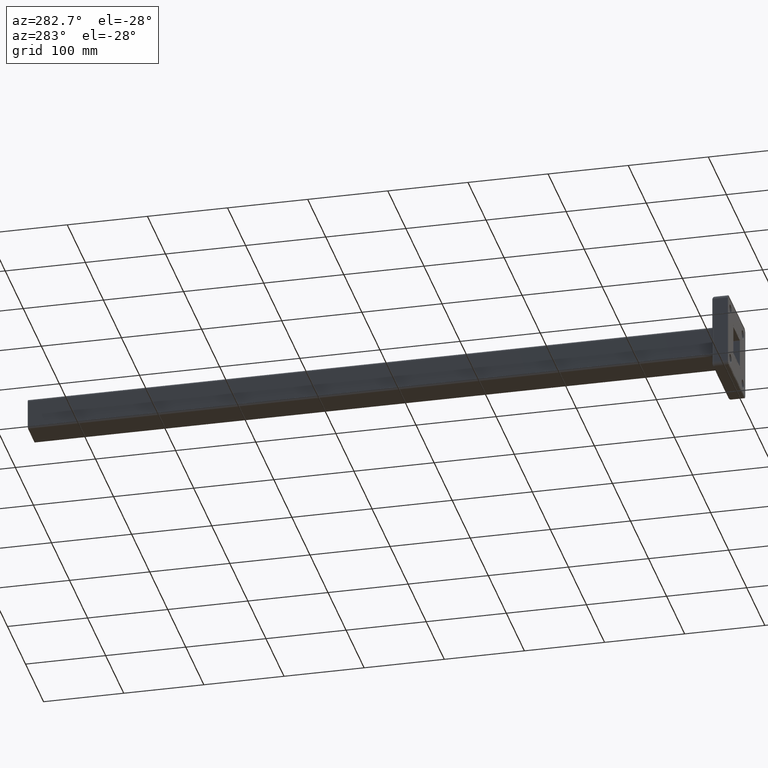
[diagram: clean part render]
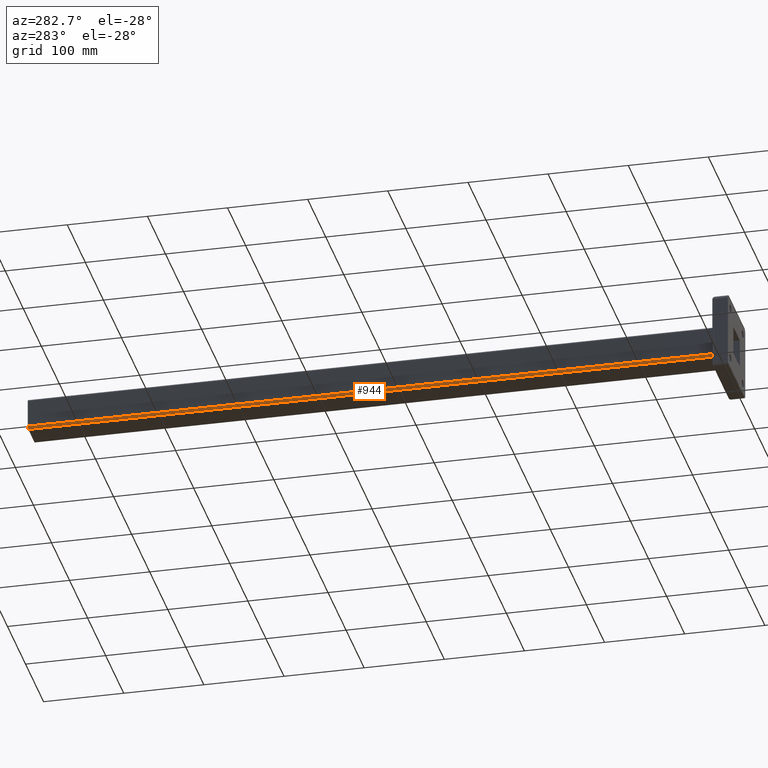
[diagram: same view with one face highlighted and labeled with its STEP entity id]
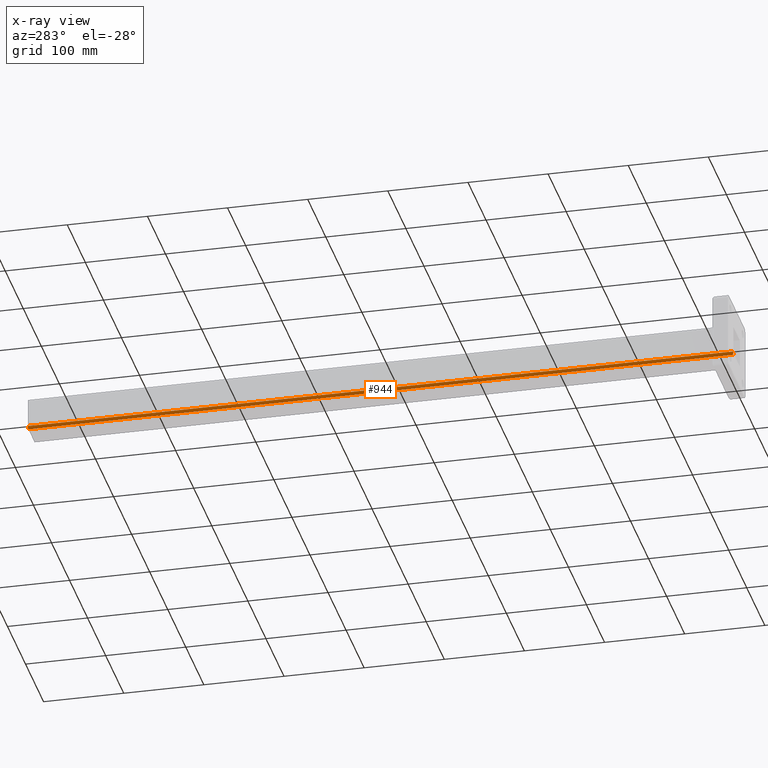
[diagram: x-ray of the same camera — body ghosted, the highlighted face saturated]
A machine part, auxiliary view. The second image highlights one B-rep face of the part: STEP entity #944.
The next image is the same camera in x-ray: the body ghosted, the highlighted face saturated — about 0% of this face is hidden behind the body in this view.
In plain terms, the highlighted cylindrical surface (edge-blend (fillet) strip) has radius 3 mm, axis along (0, -1, 0).
Its self-contained STEP definition (entity closure, byte-faithful):
#41 = CARTESIAN_POINT ( 'NONE',  ( -17.00000000000000400, 880.0000000000000000, -20.00000000000000400 ) ) ;
#142 = CARTESIAN_POINT ( 'NONE',  ( -17.00000000000000400, 880.0000000000000000, -20.00000000000000400 ) ) ;
#228 = FACE_OUTER_BOUND ( 'NONE', #2648, .T. ) ;
#323 = CYLINDRICAL_SURFACE ( 'NONE', #1906, 2.999999999999999100 ) ;
#353 = VECTOR ( 'NONE', #2839, 1000.000000000000000 ) ;
#516 = EDGE_CURVE ( 'NONE', #3636, #1227, #3609, .T. ) ;
#531 = CIRCLE ( 'NONE', #648, 2.999999999999999100 ) ;
#626 = DIRECTION ( 'NONE',  ( 0.0000000000000000000, 1.000000000000000000, 0.0000000000000000000 ) ) ;
#648 = AXIS2_PLACEMENT_3D ( 'NONE', #2050, #626, #1763 ) ;
#680 = VECTOR ( 'NONE', #2124, 1000.000000000000000 ) ;
#729 = ORIENTED_EDGE ( 'NONE', *, *, #3288, .F. ) ;
#817 = CARTESIAN_POINT ( 'NONE',  ( -17.00000000000000400, 880.0000000000000000, -17.00000000000000400 ) ) ;
#944 = ADVANCED_FACE ( 'NONE', ( #228 ), #323, .T. ) ;
#994 = ORIENTED_EDGE ( 'NONE', *, *, #3484, .F. ) ;
#1103 = AXIS2_PLACEMENT_3D ( 'NONE', #1410, #2498, #3079 ) ;
#1104 = ORIENTED_EDGE ( 'NONE', *, *, #516, .F. ) ;
#1227 = VERTEX_POINT ( 'NONE', #2203 ) ;
#1410 = CARTESIAN_POINT ( 'NONE',  ( -17.00000000000000400, 0.0000000000000000000, -17.00000000000000400 ) ) ;
#1451 = CARTESIAN_POINT ( 'NONE',  ( -20.00000000000000400, 880.0000000000000000, -17.00000000000000400 ) ) ;
#1600 = VERTEX_POINT ( 'NONE', #3473 ) ;
#1652 = CARTESIAN_POINT ( 'NONE',  ( -20.00000000000000400, 0.0000000000000000000, -17.00000000000000400 ) ) ;
#1763 = DIRECTION ( 'NONE',  ( 0.0000000000000000000, 0.0000000000000000000, 1.000000000000000000 ) ) ;
#1906 = AXIS2_PLACEMENT_3D ( 'NONE', #817, #3642, #3397 ) ;
#2050 = CARTESIAN_POINT ( 'NONE',  ( -17.00000000000000400, 880.0000000000000000, -17.00000000000000400 ) ) ;
#2124 = DIRECTION ( 'NONE',  ( -0.0000000000000000000, 1.000000000000000000, -0.0000000000000000000 ) ) ;
#2203 = CARTESIAN_POINT ( 'NONE',  ( -17.00000000000000400, 0.0000000000000000000, -20.00000000000000400 ) ) ;
#2482 = LINE ( 'NONE', #1451, #353 ) ;
#2498 = DIRECTION ( 'NONE',  ( -0.0000000000000000000, -1.000000000000000000, -0.0000000000000000000 ) ) ;
#2648 = EDGE_LOOP ( 'NONE', ( #729, #994, #1104, #2866 ) ) ;
#2818 = EDGE_CURVE ( 'NONE', #1600, #3636, #2482, .T. ) ;
#2839 = DIRECTION ( 'NONE',  ( 0.0000000000000000000, -1.000000000000000000, 0.0000000000000000000 ) ) ;
#2866 = ORIENTED_EDGE ( 'NONE', *, *, #2818, .F. ) ;
#2899 = VERTEX_POINT ( 'NONE', #41 ) ;
#3079 = DIRECTION ( 'NONE',  ( 0.0000000000000000000, 0.0000000000000000000, 1.000000000000000000 ) ) ;
#3288 = EDGE_CURVE ( 'NONE', #2899, #1600, #531, .T. ) ;
#3351 = LINE ( 'NONE', #142, #680 ) ;
#3397 = DIRECTION ( 'NONE',  ( 0.0000000000000000000, 0.0000000000000000000, -1.000000000000000000 ) ) ;
#3473 = CARTESIAN_POINT ( 'NONE',  ( -20.00000000000000400, 880.0000000000000000, -17.00000000000000400 ) ) ;
#3484 = EDGE_CURVE ( 'NONE', #1227, #2899, #3351, .T. ) ;
#3609 = CIRCLE ( 'NONE', #1103, 2.999999999999999100 ) ;
#3636 = VERTEX_POINT ( 'NONE', #1652 ) ;
#3642 = DIRECTION ( 'NONE',  ( 0.0000000000000000000, -1.000000000000000000, 0.0000000000000000000 ) ) ;